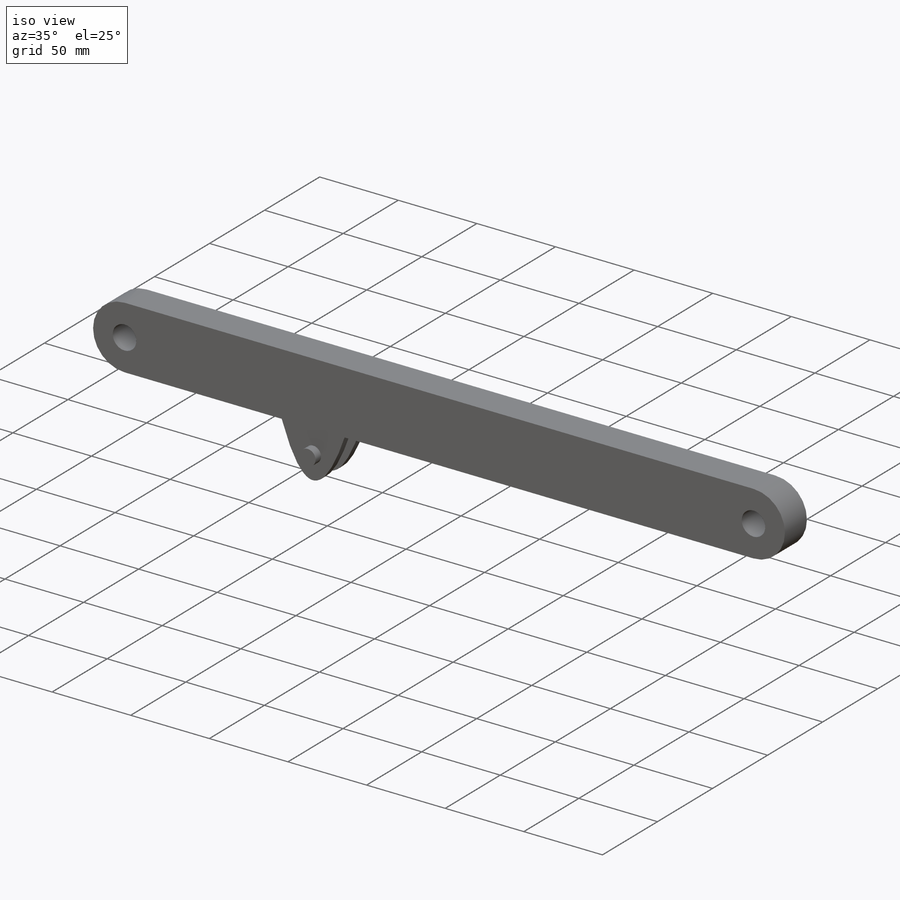
[diagram: iso view]
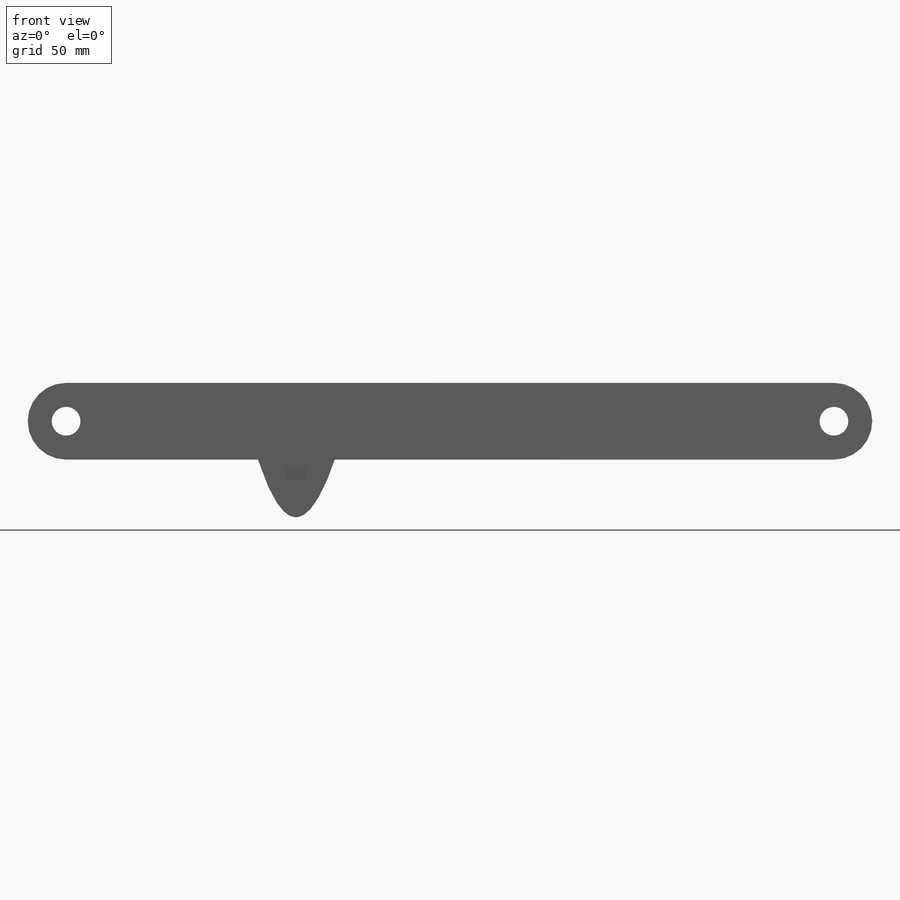
[diagram: front view]
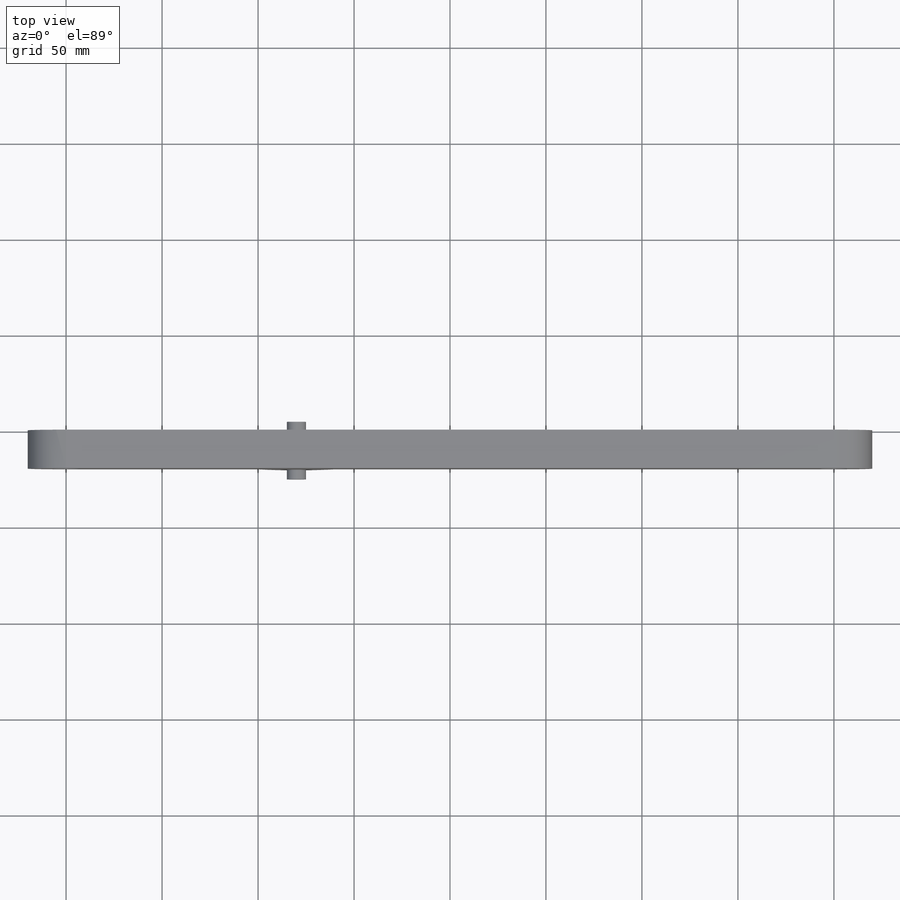
[diagram: top view]
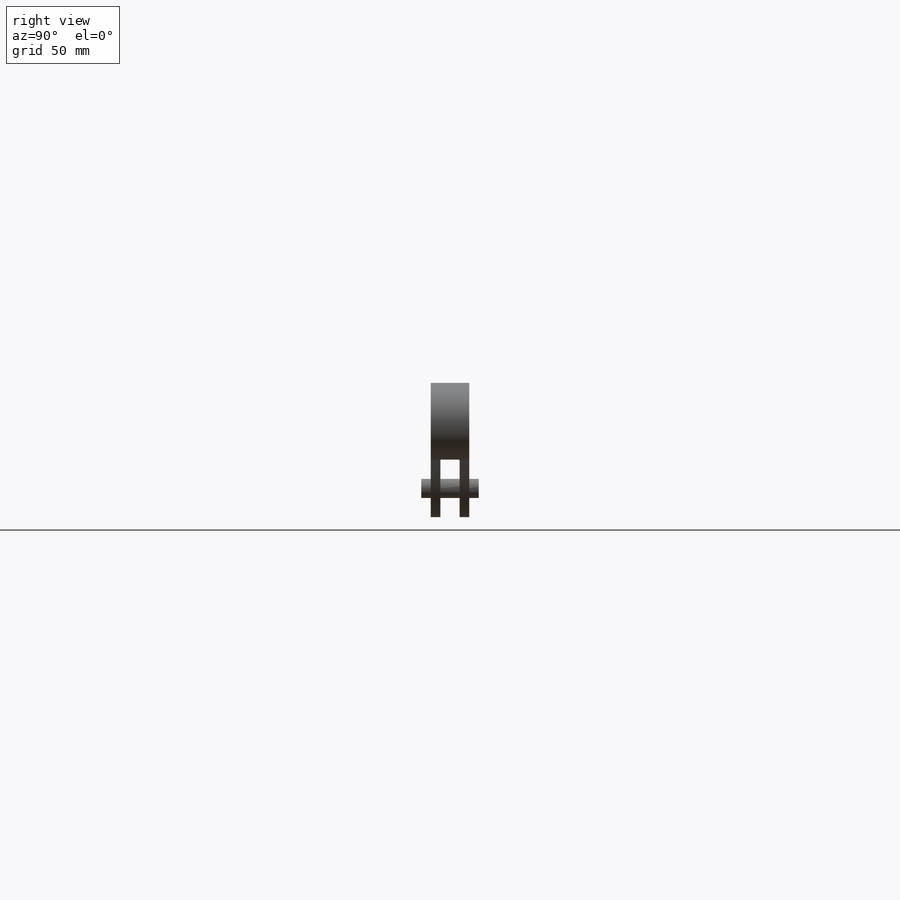
[diagram: right view]
SOLIDWORKS PART (.sldprt)
format: sldprt  version: not decoded by parser v0  size: 160,256 bytes
history: native  units: mm
features: sketch x4, extrude x3, material x1, cut_extrude x1, plane x1, mirror x1 (+13 scaffold rows collapsed)
feature tree (24):
  scaffold x13  (default folders/planes/origin — collapsed)
  material  "AISI 304"
  sketch  "Sketch2"  dims[D1=400.0mm]
  extrude  "Boss-Extrude1"  Depth=20mm
  sketch  "Sketch4"  dims[D1=~8.090641mm]
  cut_extrude  "Cut-Extrude1"  Depth=20mm
  plane  "Plane1"  Offset=10mm
  sketch  "Sketch8"  dims[D1=40.0mm]
  extrude  "Boss-Extrude2"  Depth=5mm
  sketch  "Sketch9"  dims[D1=~7.31181mm]
  extrude  "Boss-Extrude3"  Depth=10mm
  mirror  "Mirror2"
decode coverage: 8 of 9 modeling features carry decoded parameters
note: ~ marks probable driven/reference dimensions
note: suppression state not decoded; provenance and decode notes live in map.json
